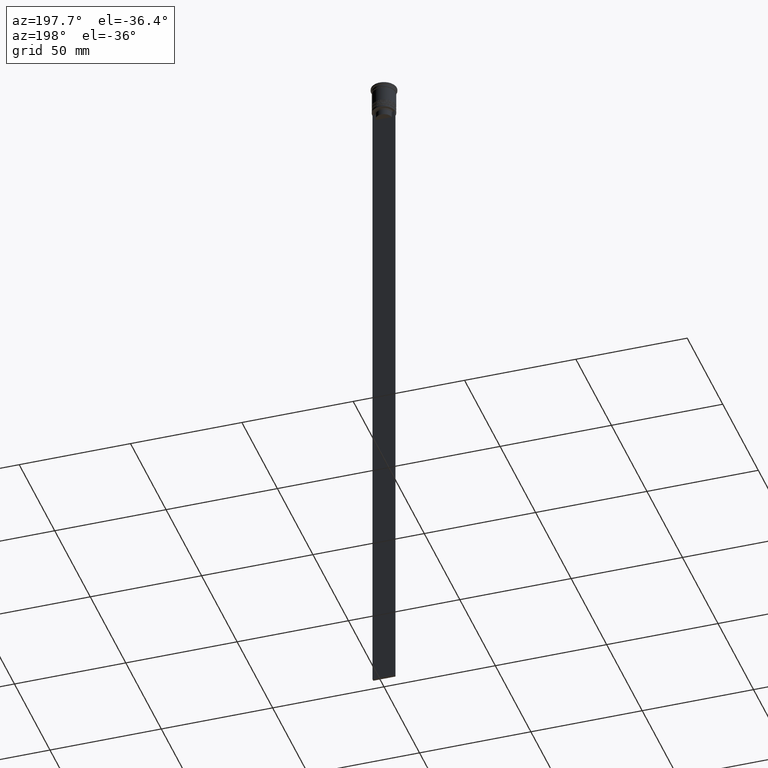
[diagram: clean part render]
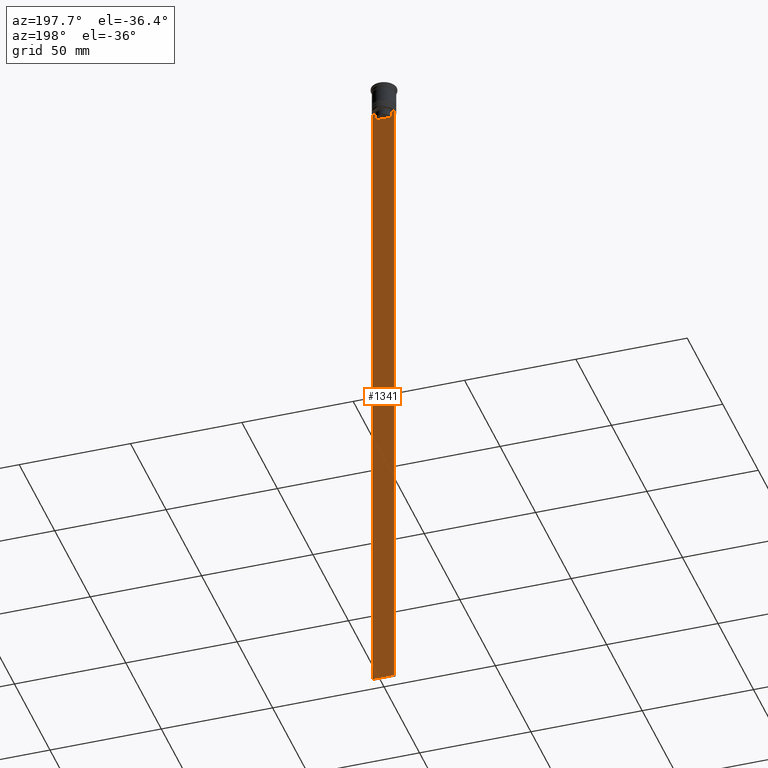
[diagram: same view with one face highlighted and labeled with its STEP entity id]
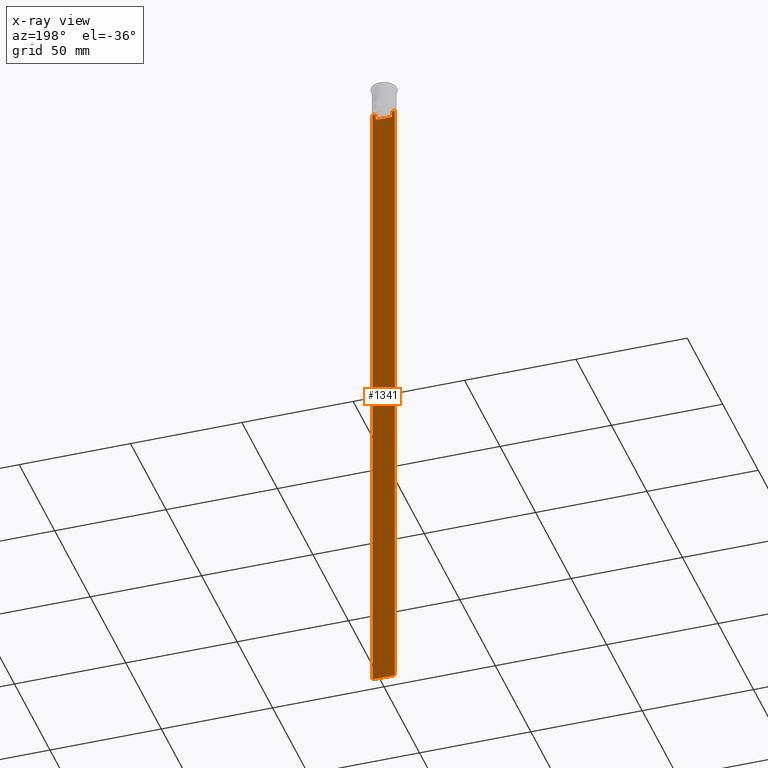
[diagram: x-ray of the same camera — body ghosted, the highlighted face saturated]
A machine part, auxiliary view. The second image highlights one B-rep face of the part: STEP entity #1341.
The next image is the same camera in x-ray: the body ghosted, the highlighted face saturated — about 0% of this face is hidden behind the body in this view.
In plain terms, the highlighted planar face has unit normal (0, -1, -0).
Its self-contained STEP definition (entity closure, byte-faithful):
#1 = DIRECTION ( 'NONE',  ( 0.000000000000000000, 0.000000000000000000, -1.000000000000000000 ) ) ;
#8 = CARTESIAN_POINT ( 'NONE',  ( 3.951794168112527927, 0.4999999999999991673, -12.66675163073525923 ) ) ;
#11 = CARTESIAN_POINT ( 'NONE',  ( -3.615591237958188042, 0.4999999999999991673, 0.000000000000000000 ) ) ;
#38 = LINE ( 'NONE', #11, #857 ) ;
#44 = B_SPLINE_CURVE_WITH_KNOTS ( 'NONE', 3,
 ( #2330, #1297, #8, #2016 ),
 .UNSPECIFIED., .F., .F.,
 ( 4, 4 ),
 ( 0.01745179617248911533, 0.01816207215777259493 ),
 .UNSPECIFIED. ) ;
#62 = LINE ( 'NONE', #926, #1349 ) ;
#90 = DIRECTION ( 'NONE',  ( 1.000000000000000000, 0.000000000000000000, 0.000000000000000000 ) ) ;
#109 = VERTEX_POINT ( 'NONE', #410 ) ;
#123 = ORIENTED_EDGE ( 'NONE', *, *, #1552, .T. ) ;
#130 = LINE ( 'NONE', #1345, #2292 ) ;
#170 = ORIENTED_EDGE ( 'NONE', *, *, #1510, .T. ) ;
#177 = ORIENTED_EDGE ( 'NONE', *, *, #614, .T. ) ;
#261 = VERTEX_POINT ( 'NONE', #1461 ) ;
#288 = EDGE_CURVE ( 'NONE', #1717, #2180, #654, .T. ) ;
#307 = DIRECTION ( 'NONE',  ( 1.000000000000000000, 0.000000000000000000, 0.000000000000000000 ) ) ;
#336 = DIRECTION ( 'NONE',  ( 1.000000000000000000, 0.000000000000000000, 0.000000000000000000 ) ) ;
#344 = EDGE_CURVE ( 'NONE', #2180, #109, #38, .T. ) ;
#371 = VERTEX_POINT ( 'NONE', #1827 ) ;
#394 = DIRECTION ( 'NONE',  ( 0.000000000000000000, 0.000000000000000000, -1.000000000000000000 ) ) ;
#400 = CARTESIAN_POINT ( 'NONE',  ( -4.999999999999999112, 0.4999999999999991673, -2.450124378879110054 ) ) ;
#410 = CARTESIAN_POINT ( 'NONE',  ( -3.615591237958188486, 0.4999999999999991673, -15.50000000000000000 ) ) ;
#416 = CARTESIAN_POINT ( 'NONE',  ( 3.615591237958188042, 0.4999999999999991673, -13.00000000000000178 ) ) ;
#421 = VERTEX_POINT ( 'NONE', #416 ) ;
#429 = CARTESIAN_POINT ( 'NONE',  ( 5.000000000000000000, 0.4999999999999991673, -2.450124378879110054 ) ) ;
#439 = VECTOR ( 'NONE', #598, 1000.000000000000000 ) ;
#443 = VECTOR ( 'NONE', #1983, 1000.000000000000000 ) ;
#479 = EDGE_CURVE ( 'NONE', #577, #371, #789, .T. ) ;
#499 = CARTESIAN_POINT ( 'NONE',  ( 5.000000000000000000, 0.4999999999999991673, -312.5000000000000000 ) ) ;
#570 = DIRECTION ( 'NONE',  ( 0.000000000000000000, -1.000000000000000000, -0.000000000000000000 ) ) ;
#577 = VERTEX_POINT ( 'NONE', #1727 ) ;
#580 = DIRECTION ( 'NONE',  ( -0.000000000000000000, -0.000000000000000000, 1.000000000000000000 ) ) ;
#598 = DIRECTION ( 'NONE',  ( 0.000000000000000000, 0.000000000000000000, -1.000000000000000000 ) ) ;
#614 = EDGE_CURVE ( 'NONE', #1637, #1615, #2096, .T. ) ;
#654 = B_SPLINE_CURVE_WITH_KNOTS ( 'NONE', 3,
 ( #1473, #1074, #1090, #2197 ),
 .UNSPECIFIED., .F., .F.,
 ( 4, 4 ),
 ( 0.007067514914986626831, 0.007777582239375527978 ),
 .UNSPECIFIED. ) ;
#771 = EDGE_CURVE ( 'NONE', #421, #261, #44, .T. ) ;
#789 = LINE ( 'NONE', #400, #439 ) ;
#810 = EDGE_CURVE ( 'NONE', #1615, #371, #1062, .T. ) ;
#834 = EDGE_LOOP ( 'NONE', ( #123, #1218, #1325, #1475, #991, #941, #170, #177, #915, #1412 ) ) ;
#857 = VECTOR ( 'NONE', #1, 1000.000000000000000 ) ;
#899 = CARTESIAN_POINT ( 'NONE',  ( 5.000000000000000000, 0.4999999999999991673, -12.50000000000000000 ) ) ;
#915 = ORIENTED_EDGE ( 'NONE', *, *, #810, .T. ) ;
#926 = CARTESIAN_POINT ( 'NONE',  ( 3.615591237958188042, 0.4999999999999991673, 0.000000000000000000 ) ) ;
#941 = ORIENTED_EDGE ( 'NONE', *, *, #771, .T. ) ;
#943 = PLANE ( 'NONE',  #1843 ) ;
#991 = ORIENTED_EDGE ( 'NONE', *, *, #1328, .T. ) ;
#1062 = LINE ( 'NONE', #1603, #443 ) ;
#1069 = CARTESIAN_POINT ( 'NONE',  ( 3.615591237958188486, 0.4999999999999991673, -15.50000000000000000 ) ) ;
#1074 = CARTESIAN_POINT ( 'NONE',  ( -3.951794205566887985, 0.4999999999999991673, -12.66675159355373737 ) ) ;
#1090 = CARTESIAN_POINT ( 'NONE',  ( -3.783746449387932920, 0.4999999999999991673, -12.83342999751715752 ) ) ;
#1191 = VERTEX_POINT ( 'NONE', #1069 ) ;
#1200 = DIRECTION ( 'NONE',  ( 0.000000000000000000, 0.000000000000000000, -1.000000000000000000 ) ) ;
#1218 = ORIENTED_EDGE ( 'NONE', *, *, #288, .T. ) ;
#1230 = CARTESIAN_POINT ( 'NONE',  ( 5.000000000000000000, 0.4999999999999991673, -12.50000000000000000 ) ) ;
#1265 = LINE ( 'NONE', #899, #1311 ) ;
#1297 = CARTESIAN_POINT ( 'NONE',  ( 3.783746406711540722, 0.4999999999999991673, -12.83343003979123509 ) ) ;
#1311 = VECTOR ( 'NONE', #336, 1000.000000000000000 ) ;
#1325 = ORIENTED_EDGE ( 'NONE', *, *, #344, .T. ) ;
#1328 = EDGE_CURVE ( 'NONE', #1191, #421, #62, .T. ) ;
#1341 = ADVANCED_FACE ( 'NONE', ( #2235 ), #943, .F. ) ;
#1345 = CARTESIAN_POINT ( 'NONE',  ( 5.000000000000000000, 0.4999999999999991673, -12.50000000000000000 ) ) ;
#1349 = VECTOR ( 'NONE', #580, 1000.000000000000000 ) ;
#1383 = LINE ( 'NONE', #2287, #1816 ) ;
#1412 = ORIENTED_EDGE ( 'NONE', *, *, #479, .F. ) ;
#1461 = CARTESIAN_POINT ( 'NONE',  ( 4.119769411022908834, 0.4999999999999991673, -12.50000000000000000 ) ) ;
#1473 = CARTESIAN_POINT ( 'NONE',  ( -4.119769411022908834, 0.4999999999999991673, -12.50000000000000000 ) ) ;
#1475 = ORIENTED_EDGE ( 'NONE', *, *, #1868, .T. ) ;
#1510 = EDGE_CURVE ( 'NONE', #261, #1637, #130, .T. ) ;
#1534 = CARTESIAN_POINT ( 'NONE',  ( 5.000000000000000000, 0.4999999999999991673, -2.450124378879110054 ) ) ;
#1552 = EDGE_CURVE ( 'NONE', #577, #1717, #1265, .T. ) ;
#1603 = CARTESIAN_POINT ( 'NONE',  ( 5.000000000000000000, 0.4999999999999991673, -312.5000000000000000 ) ) ;
#1615 = VERTEX_POINT ( 'NONE', #499 ) ;
#1637 = VERTEX_POINT ( 'NONE', #1230 ) ;
#1656 = VECTOR ( 'NONE', #1200, 1000.000000000000000 ) ;
#1717 = VERTEX_POINT ( 'NONE', #2054 ) ;
#1727 = CARTESIAN_POINT ( 'NONE',  ( -4.999999999999999112, 0.4999999999999993339, -12.50000000000000000 ) ) ;
#1816 = VECTOR ( 'NONE', #90, 1000.000000000000000 ) ;
#1827 = CARTESIAN_POINT ( 'NONE',  ( -4.999999999999999112, 0.4999999999999991673, -312.5000000000000000 ) ) ;
#1843 = AXIS2_PLACEMENT_3D ( 'NONE', #429, #570, #394 ) ;
#1868 = EDGE_CURVE ( 'NONE', #109, #1191, #1383, .T. ) ;
#1983 = DIRECTION ( 'NONE',  ( -1.000000000000000000, 0.000000000000000000, 0.000000000000000000 ) ) ;
#2016 = CARTESIAN_POINT ( 'NONE',  ( 4.119769411022908834, 0.4999999999999991673, -12.50000000000000000 ) ) ;
#2054 = CARTESIAN_POINT ( 'NONE',  ( -4.119769411022908834, 0.4999999999999991673, -12.50000000000000000 ) ) ;
#2096 = LINE ( 'NONE', #1534, #1656 ) ;
#2180 = VERTEX_POINT ( 'NONE', #2246 ) ;
#2197 = CARTESIAN_POINT ( 'NONE',  ( -3.615591237958188042, 0.4999999999999991673, -13.00000000000000178 ) ) ;
#2235 = FACE_OUTER_BOUND ( 'NONE', #834, .T. ) ;
#2246 = CARTESIAN_POINT ( 'NONE',  ( -3.615591237958188042, 0.4999999999999991673, -13.00000000000000178 ) ) ;
#2287 = CARTESIAN_POINT ( 'NONE',  ( 0.000000000000000000, 0.4999999999999991673, -15.50000000000000000 ) ) ;
#2292 = VECTOR ( 'NONE', #307, 1000.000000000000000 ) ;
#2330 = CARTESIAN_POINT ( 'NONE',  ( 3.615591237958188042, 0.4999999999999991673, -13.00000000000000178 ) ) ;